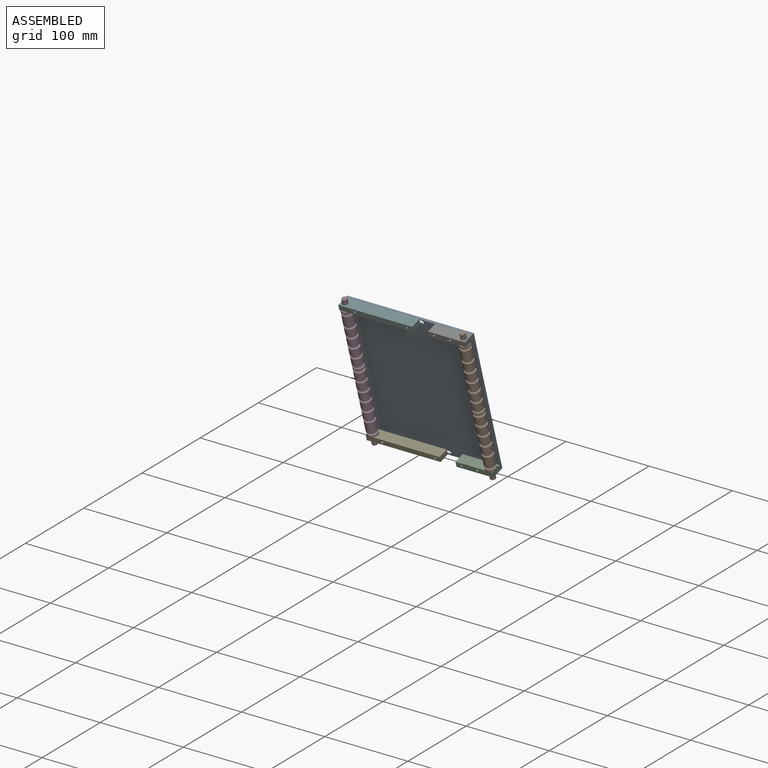
[diagram: assembled view]
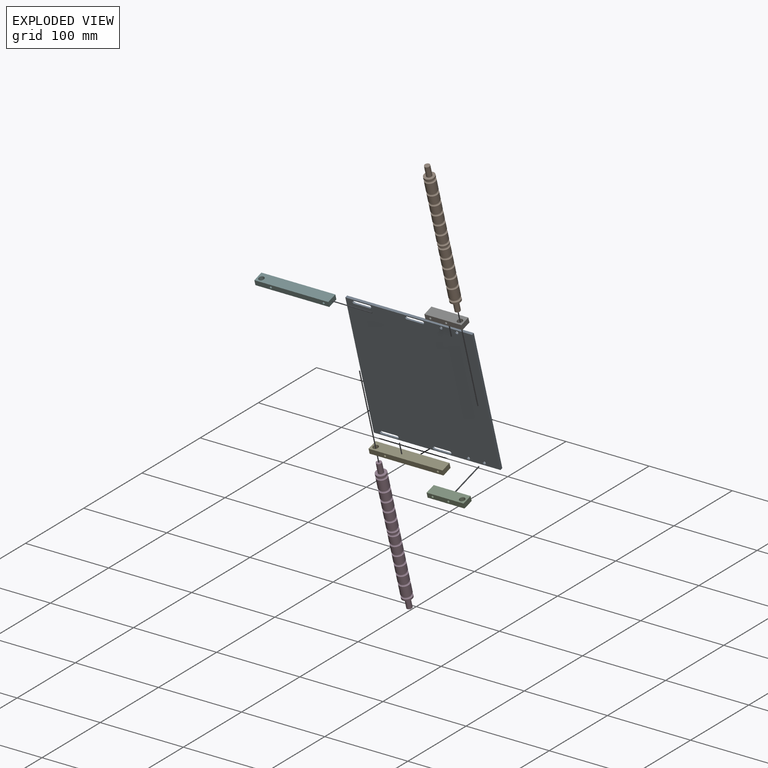
[diagram: exploded view]
GUIDED TOUR — MATED ASSEMBLY (Onshape document 7df171536bead1c0dff12cee, AutoMate assembly 7df171536bead1c0dff12cee_c732b0f8ffac11114930af41_9280328322717e96bcf535c0_default)

This assembly has 7 components, labeled P0..P6 below (a component is one placed occurrence of a part; the same part can appear more than once), held together by 15 mates. A mate is a constraint between two components; its type names the relative motion it leaves free:
  CYLINDRICAL — leaves both rotation about and translation along the listed axis free,
  PLANAR — leaves sliding in the plane through the listed point (normal = the listed direction) and rotation about that normal free,
  REVOLUTE — leaves rotation about the listed axis free (a hinge).
Axis/direction vectors are unit vectors and 'through' points are millimeter coordinates, both in the assembly's world frame.

MATES
  1. PLANAR "Planar 3": P0 <-> P5, direction (-1.000, 0.000, 0.000) through (-71.95, -60.27, 109.19) mm
  2. PLANAR "Planar 4": P0 <-> P6, direction (0.000, -0.283, 0.959) through (4.25, -60.27, 109.19) mm
  3. PLANAR "Planar 7": P2 <-> P0, direction (0.000, 0.959, 0.283) through (58.50, -13.74, -53.85) mm
  4. PLANAR "Planar 8": P2 <-> P0, direction (1.000, 0.000, 0.000) through (80.45, -19.83, -55.65) mm
  5. PLANAR "Planar 11": P4 <-> P0, direction (0.000, 0.283, -0.959) through (-26.31, -18.89, -58.69) mm
  6. REVOLUTE "Revolute 3": P3 <-> P4, axis (0.000, 0.283, -0.959) through (-66.87, -21.94, -52.97) mm
  7. PLANAR "Planar 5": P6 <-> P0, direction (1.000, 0.000, 0.000) through (80.45, -60.90, 105.69) mm
  8. PLANAR "Planar 9": P0 <-> P2, direction (0.000, 0.283, -0.959) through (4.25, -11.31, -56.45) mm
  9. CYLINDRICAL "Cylindrical 1": P1 <-> P2, axis (0.000, 0.283, -0.959) through (75.37, -22.12, -52.36) mm
  10. PLANAR "Planar 10": P4 <-> P0, direction (0.000, 0.959, 0.283) through (-27.63, -13.74, -53.85) mm
  11. PLANAR "Planar 12": P0 <-> P4, direction (-1.000, 0.000, 0.000) through (-71.95, -35.79, 26.37) mm
  12. REVOLUTE "Revolute 1": P6 <-> P1, axis (0.000, 0.283, -0.959) through (75.37, -67.30, 100.49) mm
  13. PLANAR "Planar 2": P0 <-> P5, direction (0.000, -0.283, 0.959) through (4.25, -60.27, 109.19) mm
  14. PLANAR "Planar 6": P6 <-> P0, direction (0.000, 0.959, 0.283) through (58.23, -61.80, 108.74) mm
  15. PLANAR "Planar 1": P0 <-> P5, direction (0.000, -0.959, -0.283) through (-52.90, -60.36, 103.88) mm

ASSEMBLY ORDER
  1. P4 — the base component [order verified]
  2. P3 [order verified]
  3. P2 [order verified]
  4. P1 [order verified]
  5. P0 [order verified]
  6. P6 [order verified]
  7. P5 [order verified]
Order-tag legend:
  [order verified] — this step's position reverses a verified removal order: the component was checked to insert without passing through the ones already placed.

Of the 7 components, 5 carry the full construction recipe — the FeatureScript program that regenerates the part's solid from scratch; the rest are supplied as boundary geometry only.
Each toured component is shown spotlighted twice — in the assembled view, then in the exploded view, where a leader line traces a displaced component back to its assembled socket (saturated green if recipe-attached, orange if geometry-only; every other component desaturated gray) — followed by its recipe or geometry summary and the mates that hold it.
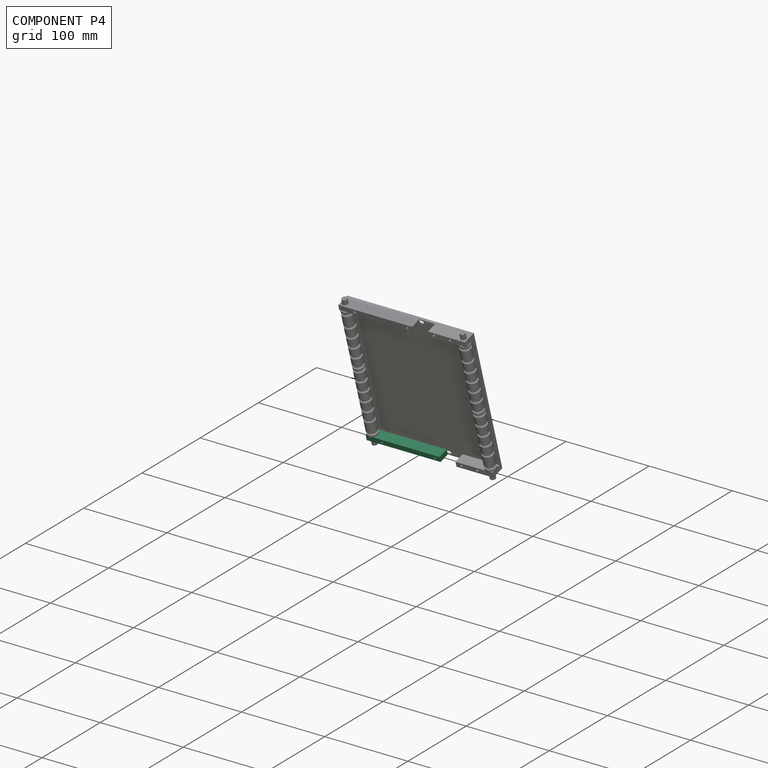
[diagram: component P4 — assembled]
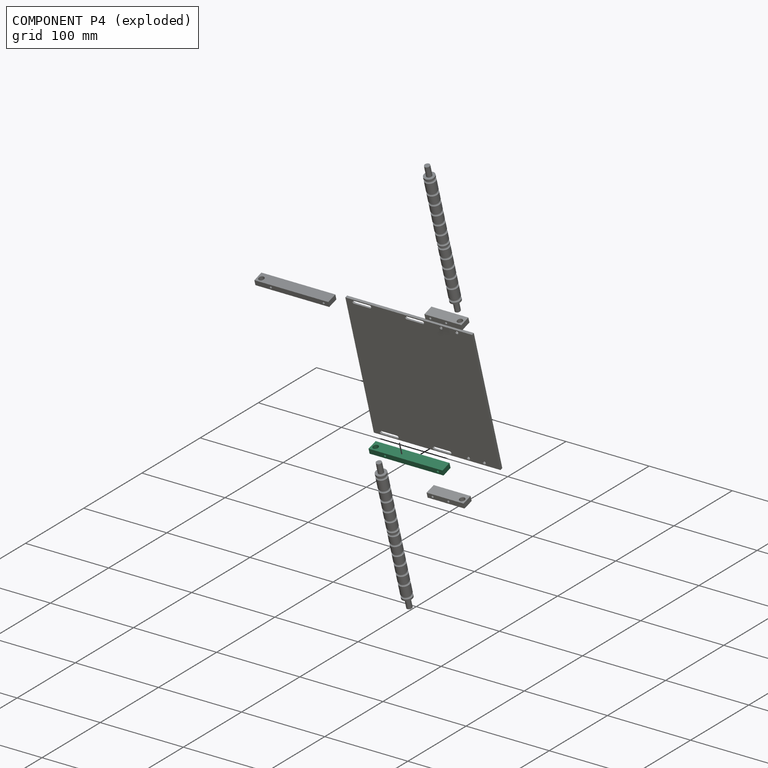
[diagram: component P4 — exploded]
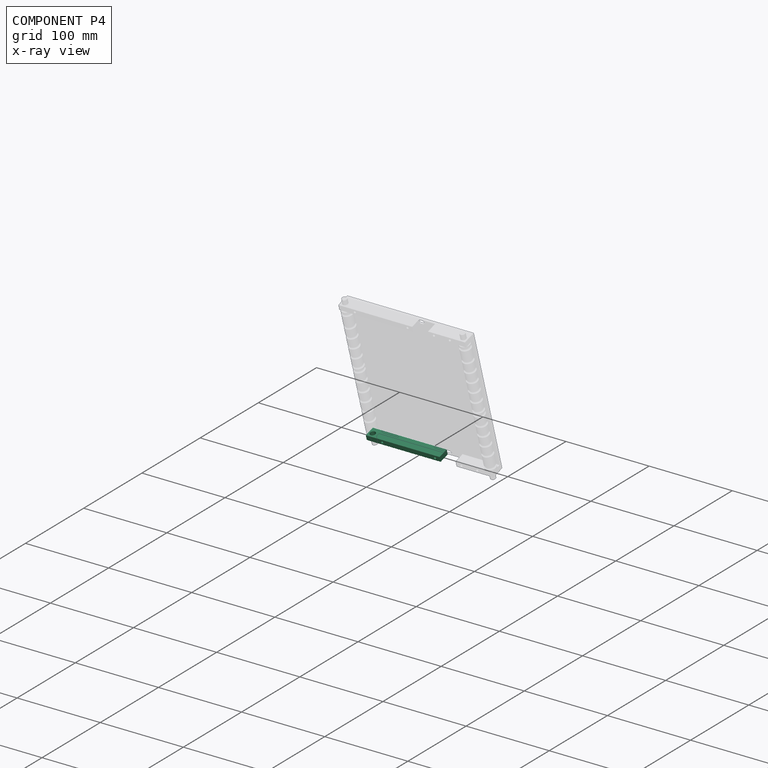
[diagram: component P4 — x-ray view]
COMPONENT P4 — recipe-attached (CADFS 00121784, mesh-verified: the recipe's output STEP matches this component's geometry to below the mesh-comparison resolution (tessellation chordal tolerance ~0.135 mm)).
Held by: PLANAR mate "Planar 11" to P0; REVOLUTE mate "Revolute 3" to P3; PLANAR mate "Planar 10" to P0; PLANAR mate "Planar 12" to P0.
Construction recipe (FeatureScript — the CAD program that rebuilds this solid; sketch coordinates are in the units given by the * unit suffixes, e.g. mm):

FeatureScript 1511;
import(path : "onshape/std/geometry.fs", version : "1511.0");
import(path : "onshape/std/common.fs", version : "1511.0");
const mm = millimeter;
const VERTEX = EntityType.VERTEX;
const EDGE = EntityType.EDGE;
const FACE = EntityType.FACE;
const BODY = EntityType.BODY;
function v(x, y){return vector(x, y);}
function OD(order){return orderDisambiguation(order);}
function OSD(set){return originalSetDisambiguation(set);}
function TD(topology){return topologyDisambiguation(topology);}
function TDD(query){return trueDependencyDisambiguation(query);}
function sQuery(a, b, c) {return sketchEntityQuery(a, b, c);}

annotation { "Feature Type Name" : "Feature", "Feature Type Description" : "" }
export const myFeature = defineFeature(function(context is Context, id is Id, definition is map)
    precondition{}
    {
        {
            var Q0;
            Q0=qCreatedBy(makeId("Front.planeOp"),FACE);
            var sketch = newSketch(context, id + "F0", { "sketchPlane" : qUnion([Q0])});
            skLineSegment(sketch, "E0.bottom", {"start": v(44.45, -6.35) * mm, "end": v(-44.45, -6.35) * mm});
            skLineSegment(sketch, "E0.top", {"start": v(44.45, 6.35) * mm, "end": v(-44.45, 6.35) * mm});
            skLineSegment(sketch, "E0.left", {"start": v(44.45, -6.35) * mm, "end": v(44.45, 6.35) * mm});
            skLineSegment(sketch, "E0.right", {"start": v(-44.45, -6.35) * mm, "end": v(-44.45, 6.35) * mm});
            skPoint(sketch, "E0.middle", {"position": v(0, 0) * mm});
            skCircle(sketch, "E1", {"center": v(-39.37, 1.27) * mm, "radius": 3.24 * mm});
            skSolve(sketch);
        }
        {
            var Q0;
            Q0 = qSketchRegion(id + "F0", true);
            extrude(context, id + "F1", {"entities" : qUnion([Q0]), "depth" : 6.35 * mm});
        }
        {
            var Q0;
            Q0=makeQuery(id+"F1.opExtrude","SWEPT_FACE",FACE,{"disambiguationData":[OSD([sQuery(id+"F0.wireOp",EDGE,"E0.bottom")])]});
            var sketch = newSketch(context, id + "F2", { "sketchPlane" : qUnion([Q0])});
            skPoint(sketch, "E2", {"position": v(-25.4, 3.18) * mm});
            skPoint(sketch, "E3", {"position": v(38.1, 3.18) * mm});
            skSolve(sketch);
        }
        {
            var Q0;
            Q0=sQuery(id+"F2.wireOp",VERTEX,"E2");
            var Q1;
            Q1=sQuery(id+"F2.wireOp",VERTEX,"E3");
            var Q2;
            Q2=makeQuery(id+"F1.opExtrude","SWEPT_BODY",BODY,{"disambiguationData":[OSD([sQuery(id+"F0.wireOp",EDGE,"E0.bottom"),sQuery(id+"F0.wireOp",EDGE,"E0.top"),sQuery(id+"F0.wireOp",EDGE,"E0.left"),sQuery(id+"F0.wireOp",EDGE,"E0.right"),sQuery(id+"F0.wireOp",EDGE,"E1")])]});
            hole(context, id + "F3", {"style" : HoleStyle.SIMPLE, "endStyle" : HoleEndStyle.THROUGH, "standardTappedOrClearance" : lookupTablePath({ "standard" : "ANSI", "engagement" : "75%", "pitch" : "32 tpi", "size" : "#6", "type" : "Tapped" }), "standardBlindInLast" : lookupTablePath({ "standard" : "ANSI", "engagement" : "75%", "pitch" : "32 tpi", "size" : "#6", "type" : "Tapped" }), "holeDiameter" : 2.7 * mm, "locations" : qUnion([Q0, Q1]), "scope" : qUnion([Q2]), "isTappedThrough" : true, "majorDiameter" : 3.5 * mm, "showTappedDepth" : true});
        }
    });
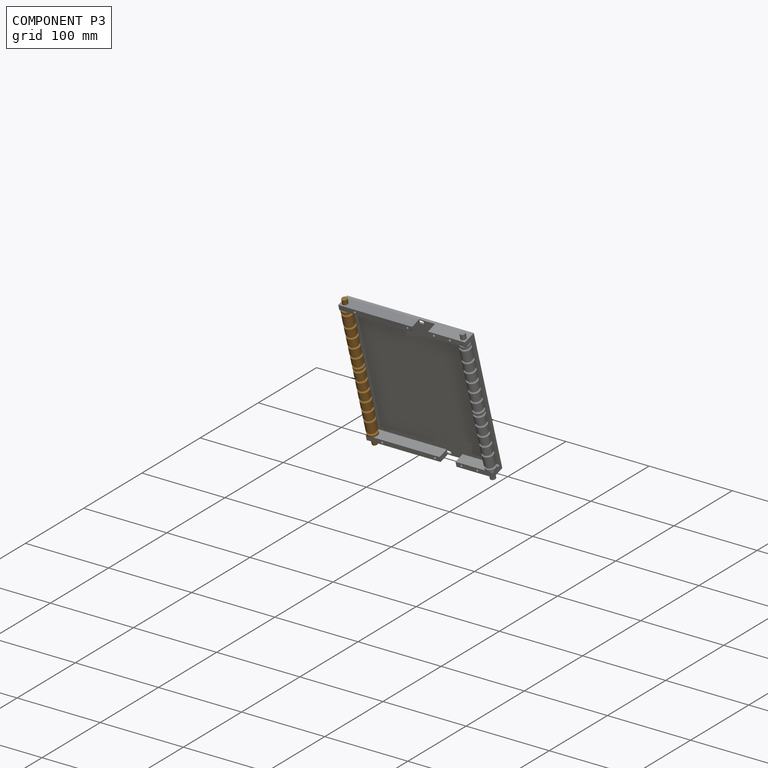
[diagram: component P3 — assembled]
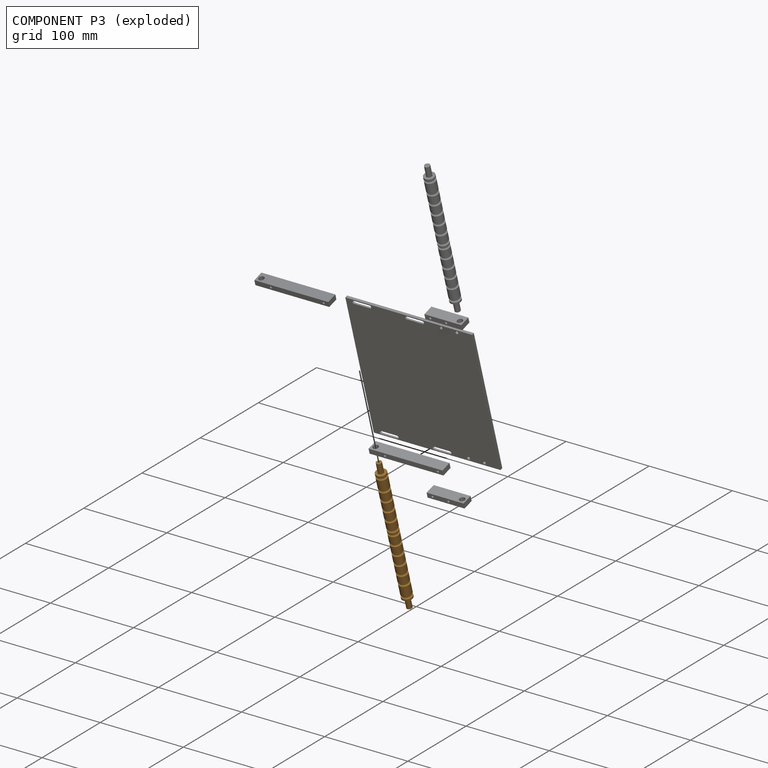
[diagram: component P3 — exploded]
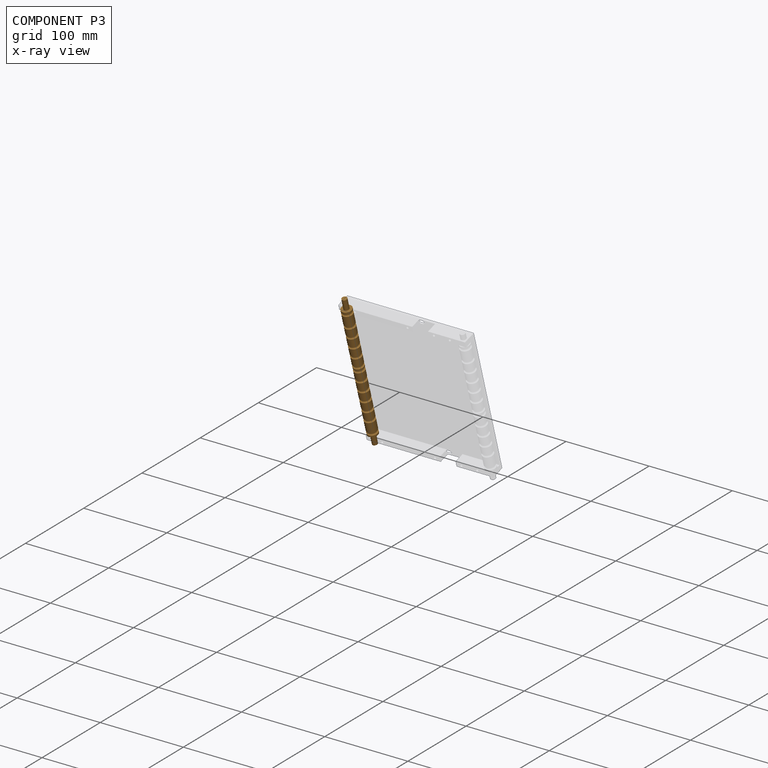
[diagram: component P3 — x-ray view]
COMPONENT P3 — geometry summary (no construction recipe available for this part):
  bounding box: 185.4 x 16.2 x 16.2 mm
  B-rep topology: 1 solid, 33 faces, 122 edges
  volume: 19179 mm^3 (39% of its bounding box)
  symmetry: revolution-symmetric about the x axis through its bounding-box center; mirror-symmetric across its y mid-plane, z mid-plane
Held by: REVOLUTE mate "Revolute 3" to P4.
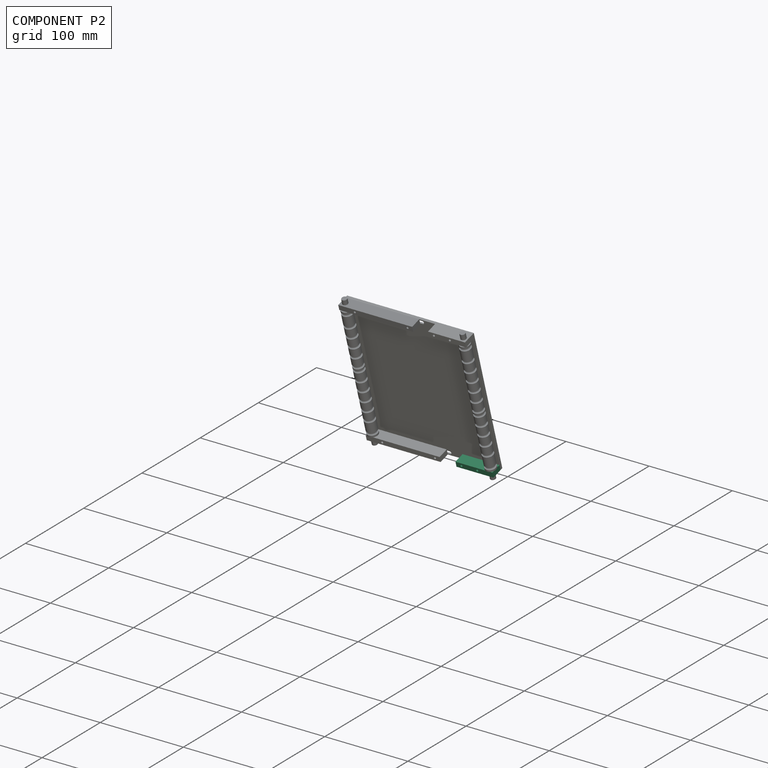
[diagram: component P2 — assembled]
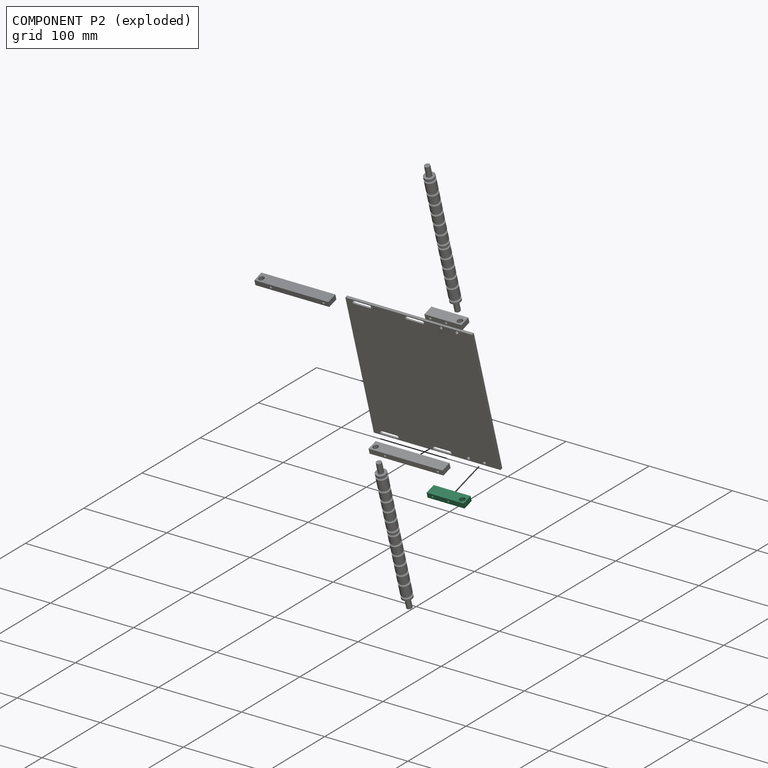
[diagram: component P2 — exploded]
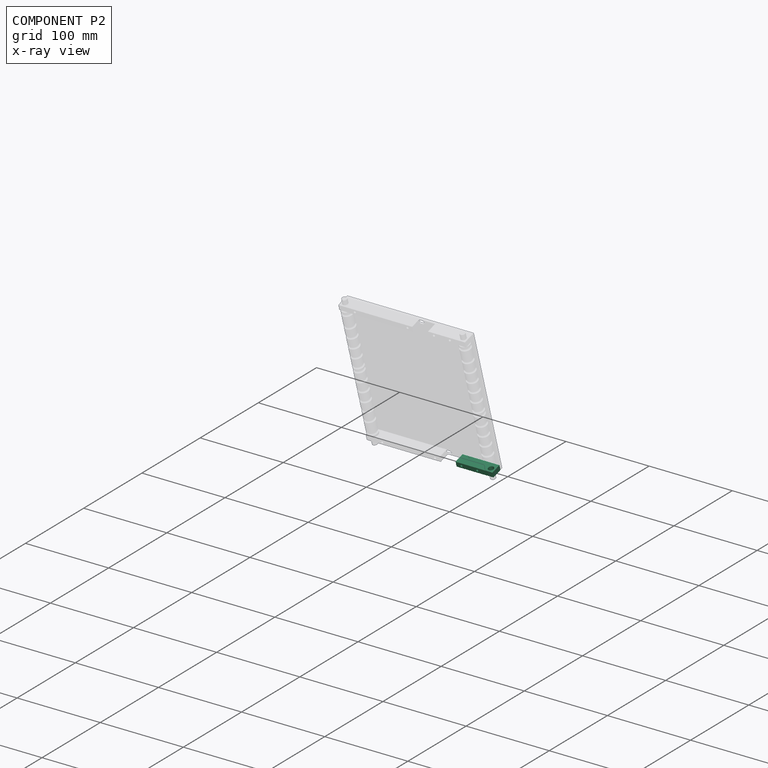
[diagram: component P2 — x-ray view]
COMPONENT P2 — recipe-attached (CADFS 00121783, mesh-verified: the recipe's output STEP matches this component's geometry to below the mesh-comparison resolution (tessellation chordal tolerance ~0.07 mm)).
Held by: PLANAR mate "Planar 7" to P0; PLANAR mate "Planar 8" to P0; PLANAR mate "Planar 9" to P0; CYLINDRICAL mate "Cylindrical 1" to P1.
Construction recipe (FeatureScript — the CAD program that rebuilds this solid; sketch coordinates are in the units given by the * unit suffixes, e.g. mm):

FeatureScript 1511;
import(path : "onshape/std/geometry.fs", version : "1511.0");
import(path : "onshape/std/common.fs", version : "1511.0");
const mm = millimeter;
const VERTEX = EntityType.VERTEX;
const EDGE = EntityType.EDGE;
const FACE = EntityType.FACE;
const BODY = EntityType.BODY;
function v(x, y){return vector(x, y);}
function OD(order){return orderDisambiguation(order);}
function OSD(set){return originalSetDisambiguation(set);}
function TD(topology){return topologyDisambiguation(topology);}
function TDD(query){return trueDependencyDisambiguation(query);}
function sQuery(a, b, c) {return sketchEntityQuery(a, b, c);}

annotation { "Feature Type Name" : "Feature", "Feature Type Description" : "" }
export const myFeature = defineFeature(function(context is Context, id is Id, definition is map)
    precondition{}
    {
        {
            var Q0;
            Q0=qCreatedBy(makeId("Front.planeOp"),FACE);
            var sketch = newSketch(context, id + "F0", { "sketchPlane" : qUnion([Q0])});
            skLineSegment(sketch, "E0.bottom", {"start": v(22.23, -6.35) * mm, "end": v(-22.23, -6.35) * mm});
            skLineSegment(sketch, "E0.top", {"start": v(22.22, 6.35) * mm, "end": v(-22.23, 6.35) * mm});
            skLineSegment(sketch, "E0.left", {"start": v(22.23, -6.35) * mm, "end": v(22.22, 6.35) * mm});
            skLineSegment(sketch, "E0.right", {"start": v(-22.23, -6.35) * mm, "end": v(-22.23, 6.35) * mm});
            skPoint(sketch, "E0.middle", {"position": v(0, 0) * mm});
            skCircle(sketch, "E1", {"center": v(17.14, 1.27) * mm, "radius": 3.24 * mm});
            skSolve(sketch);
        }
        {
            var Q0;
            Q0 = qSketchRegion(id + "F0", true);
            extrude(context, id + "F1", {"entities" : qUnion([Q0]), "depth" : 6.35 * mm});
        }
        {
            var Q0;
            Q0=makeQuery(id+"F1.opExtrude","SWEPT_FACE",FACE,{"disambiguationData":[OSD([sQuery(id+"F0.wireOp",EDGE,"E0.bottom")])]});
            var sketch = newSketch(context, id + "F2", { "sketchPlane" : qUnion([Q0])});
            skPoint(sketch, "E2", {"position": v(3.18, 3.18) * mm});
            skPoint(sketch, "E3", {"position": v(-15.88, 3.18) * mm});
            skSolve(sketch);
        }
        {
            var Q0;
            Q0=sQuery(id+"F2.wireOp",VERTEX,"E3");
            var Q1;
            Q1=sQuery(id+"F2.wireOp",VERTEX,"E2");
            var Q2;
            Q2=makeQuery(id+"F1.opExtrude","SWEPT_BODY",BODY,{"disambiguationData":[OSD([sQuery(id+"F0.wireOp",EDGE,"E0.bottom"),sQuery(id+"F0.wireOp",EDGE,"E0.top"),sQuery(id+"F0.wireOp",EDGE,"E0.left"),sQuery(id+"F0.wireOp",EDGE,"E0.right"),sQuery(id+"F0.wireOp",EDGE,"E1")])]});
            hole(context, id + "F3", {"style" : HoleStyle.SIMPLE, "endStyle" : HoleEndStyle.THROUGH, "standardTappedOrClearance" : lookupTablePath({ "standard" : "ANSI", "engagement" : "75%", "pitch" : "32 tpi", "size" : "#6", "type" : "Tapped" }), "standardBlindInLast" : lookupTablePath({ "standard" : "ANSI", "engagement" : "75%", "pitch" : "32 tpi", "size" : "#6", "type" : "Tapped" }), "holeDiameter" : 2.7 * mm, "locations" : qUnion([Q0, Q1]), "scope" : qUnion([Q2]), "isTappedThrough" : true, "majorDiameter" : 3.5 * mm, "showTappedDepth" : true});
        }
    });
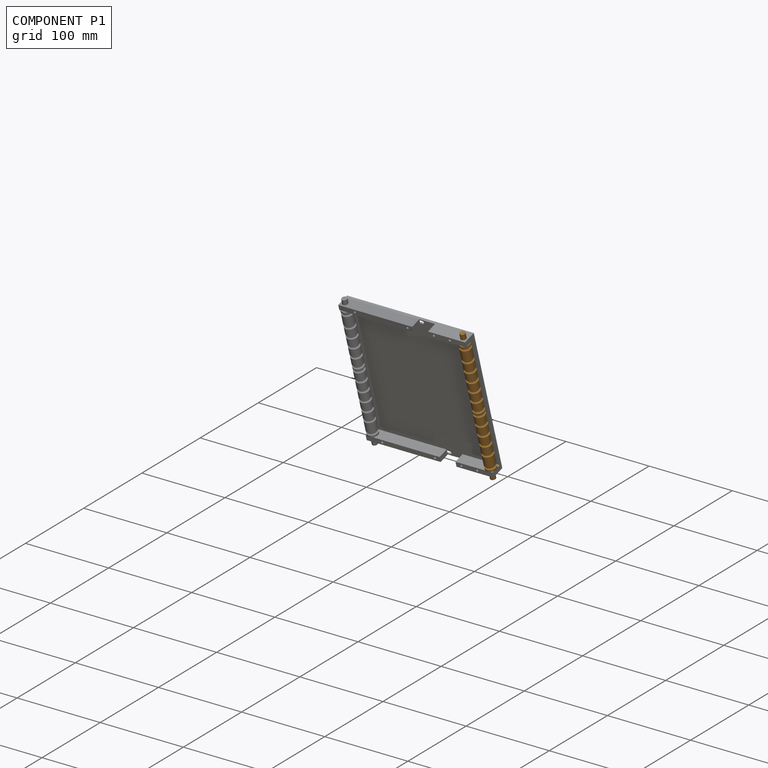
[diagram: component P1 — assembled]
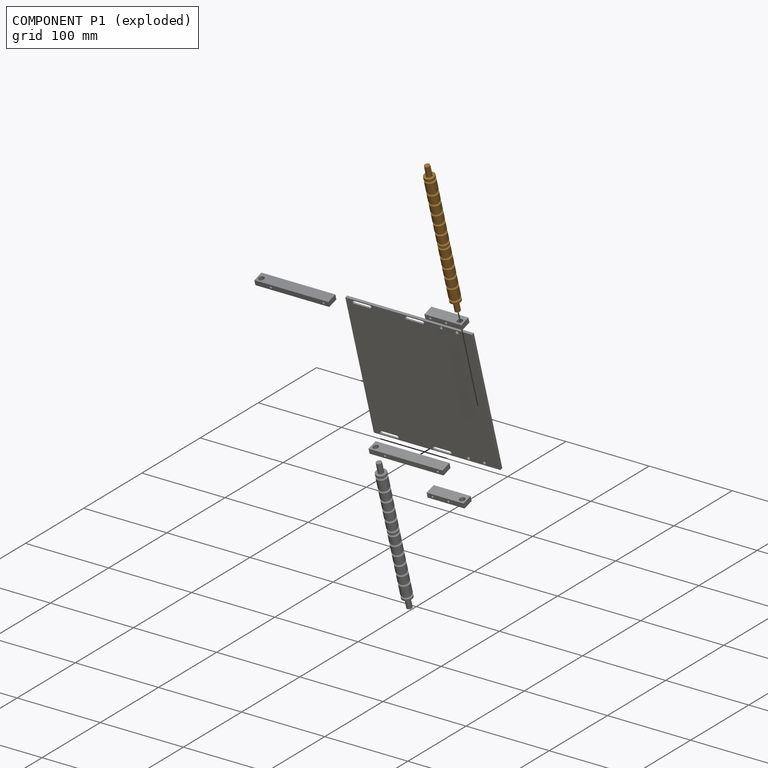
[diagram: component P1 — exploded]
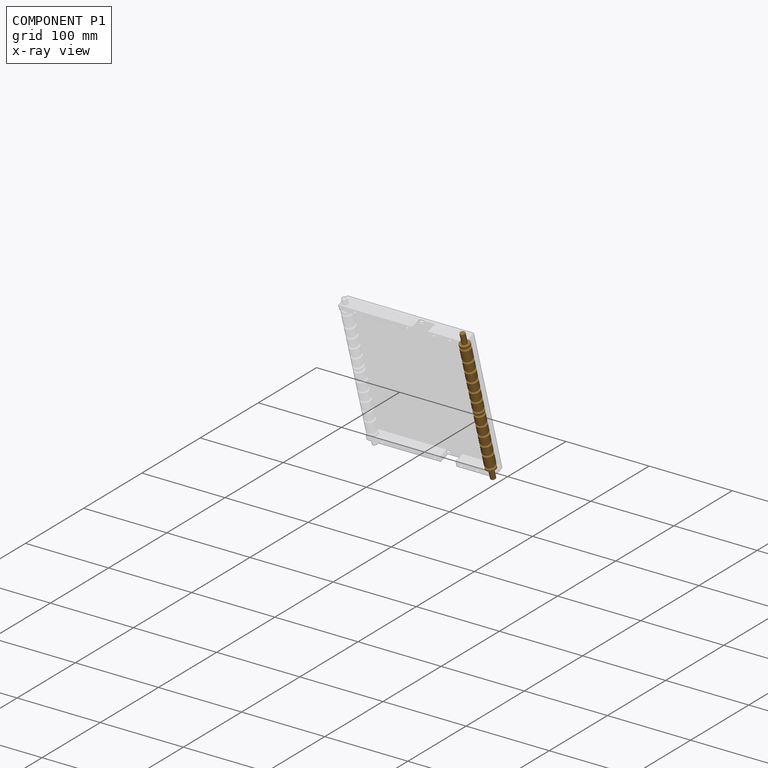
[diagram: component P1 — x-ray view]
COMPONENT P1 — geometry summary (no construction recipe available for this part):
  bounding box: 185.4 x 16.2 x 16.2 mm
  B-rep topology: 1 solid, 33 faces, 122 edges
  volume: 19179 mm^3 (39% of its bounding box)
  symmetry: revolution-symmetric about the x axis through its bounding-box center; mirror-symmetric across its y mid-plane, z mid-plane
Held by: CYLINDRICAL mate "Cylindrical 1" to P2; REVOLUTE mate "Revolute 1" to P6.
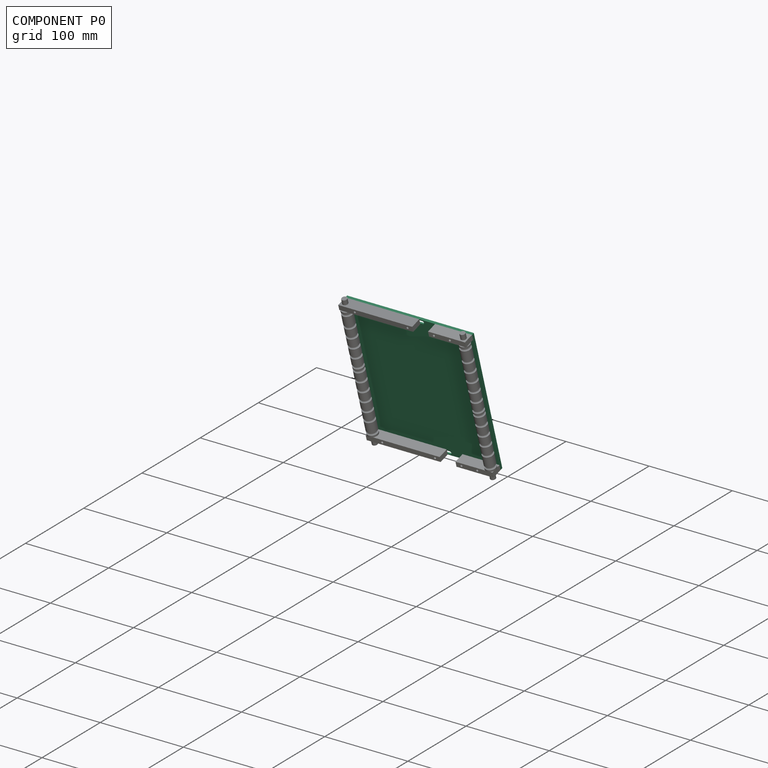
[diagram: component P0 — assembled]
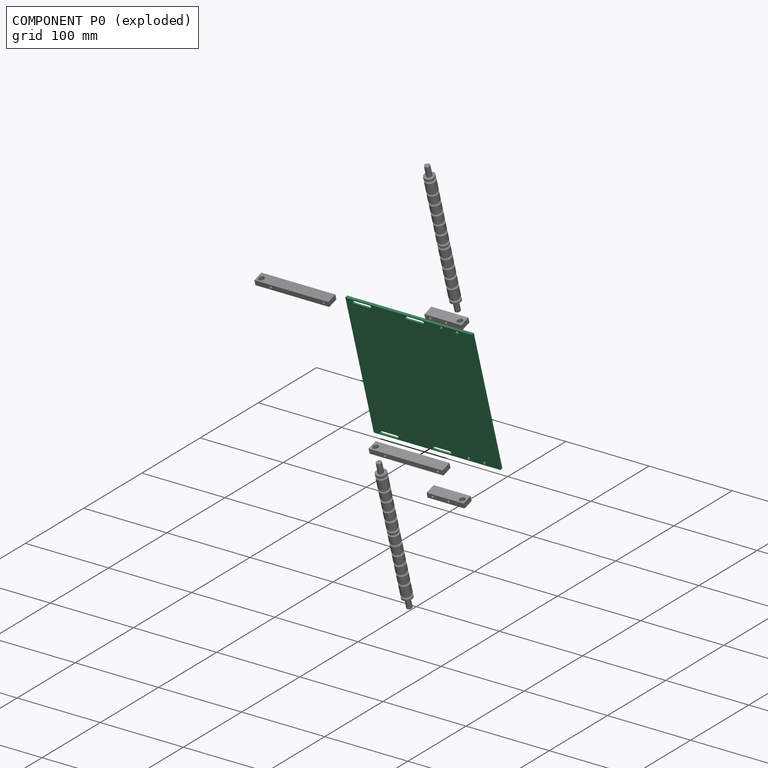
[diagram: component P0 — exploded]
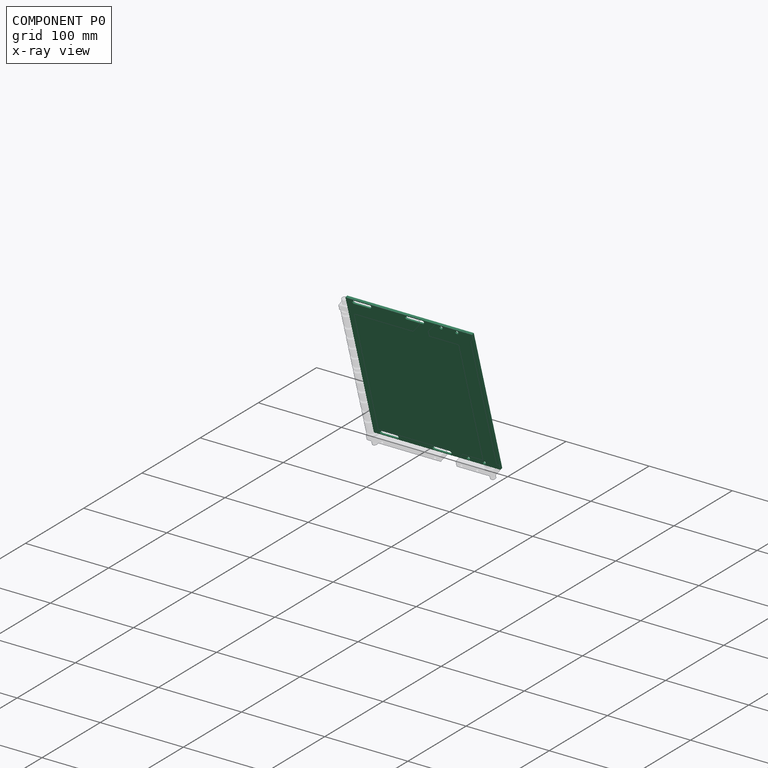
[diagram: component P0 — x-ray view]
COMPONENT P0 — recipe-attached (CADFS 00121782, mesh-verified: the recipe's output STEP matches this component's geometry to below the mesh-comparison resolution (tessellation chordal tolerance ~0.346 mm)).
Held by: PLANAR mate "Planar 3" to P5; PLANAR mate "Planar 4" to P6; PLANAR mate "Planar 7" to P2; PLANAR mate "Planar 8" to P2; PLANAR mate "Planar 11" to P4; PLANAR mate "Planar 5" to P6; PLANAR mate "Planar 9" to P2; PLANAR mate "Planar 10" to P4; PLANAR mate "Planar 12" to P4; PLANAR mate "Planar 2" to P5; PLANAR mate "Planar 6" to P6; PLANAR mate "Planar 1" to P5.
Construction recipe (FeatureScript — the CAD program that rebuilds this solid; sketch coordinates are in the units given by the * unit suffixes, e.g. mm):

FeatureScript 1511;
import(path : "onshape/std/geometry.fs", version : "1511.0");
import(path : "onshape/std/common.fs", version : "1511.0");
const mm = millimeter;
const VERTEX = EntityType.VERTEX;
const EDGE = EntityType.EDGE;
const FACE = EntityType.FACE;
const BODY = EntityType.BODY;
function v(x, y){return vector(x, y);}
function OD(order){return orderDisambiguation(order);}
function OSD(set){return originalSetDisambiguation(set);}
function TD(topology){return topologyDisambiguation(topology);}
function TDD(query){return trueDependencyDisambiguation(query);}
function sQuery(a, b, c) {return sketchEntityQuery(a, b, c);}

annotation { "Feature Type Name" : "Feature", "Feature Type Description" : "" }
export const myFeature = defineFeature(function(context is Context, id is Id, definition is map)
    precondition{}
    {
        {
            var Q0;
            Q0=qCreatedBy(makeId("Front.planeOp"),FACE);
            var sketch = newSketch(context, id + "F0", { "sketchPlane" : qUnion([Q0])});
            skLineSegment(sketch, "E0.bottom", {"start": v(76.2, -86.36) * mm, "end": v(-76.2, -86.36) * mm});
            skLineSegment(sketch, "E0.top", {"start": v(76.2, 86.36) * mm, "end": v(-76.2, 86.36) * mm});
            skLineSegment(sketch, "E0.left", {"start": v(76.2, -86.36) * mm, "end": v(76.2, 86.36) * mm});
            skLineSegment(sketch, "E0.right", {"start": v(-76.2, -86.36) * mm, "end": v(-76.2, 86.36) * mm});
            skPoint(sketch, "E0.middle", {"position": v(0, 0) * mm});
            skArc(sketch, "E1", {"start": v(-66.67, -81.3) * mm, "mid": v(-68.57, -83.19) * mm, "end": v(-66.67, -85.08) * mm});
            skArc(sketch, "E2", {"start": v(-47.62, -85.08) * mm, "mid": v(-45.73, -83.19) * mm, "end": v(-47.62, -81.3) * mm});
            skLineSegment(sketch, "E3", {"start": v(-66.67, -81.3) * mm, "end": v(-47.62, -81.3) * mm});
            skLineSegment(sketch, "E4", {"start": v(-47.62, -85.08) * mm, "end": v(-66.67, -85.08) * mm});
            skArc(sketch, "E5.MirrorCS", {"start": v(-47.62, 85.08) * mm, "mid": v(-45.73, 83.19) * mm, "end": v(-47.62, 81.3) * mm});
            skLineSegment(sketch, "E6.MirrorCS", {"start": v(-66.67, 81.3) * mm, "end": v(-47.62, 81.3) * mm});
            skLineSegment(sketch, "E7.MirrorCS", {"start": v(-47.62, 85.08) * mm, "end": v(-66.67, 85.08) * mm});
            skArc(sketch, "E8.MirrorCS", {"start": v(-66.67, 81.3) * mm, "mid": v(-68.57, 83.19) * mm, "end": v(-66.67, 85.08) * mm});
            skLineSegment(sketch, "E9", {"start": v(-25.4, 86.36) * mm, "end": v(-25.4, -120.08) * mm, "construction": true});
            skArc(sketch, "E10.MirrorCS", {"start": v(-3.17, -85.08) * mm, "mid": v(-5.07, -83.19) * mm, "end": v(-3.17, -81.3) * mm});
            skLineSegment(sketch, "E11.MirrorCS", {"start": v(-3.17, -85.08) * mm, "end": v(15.88, -85.08) * mm});
            skArc(sketch, "E12.MirrorCS", {"start": v(15.88, -81.3) * mm, "mid": v(17.77, -83.19) * mm, "end": v(15.88, -85.08) * mm});
            skLineSegment(sketch, "E13.MirrorCS", {"start": v(-3.18, 85.08) * mm, "end": v(15.87, 85.08) * mm});
            skLineSegment(sketch, "E14.MirrorCS", {"start": v(15.88, -81.3) * mm, "end": v(-3.17, -81.3) * mm});
            skArc(sketch, "E15.MirrorCS", {"start": v(15.87, 81.3) * mm, "mid": v(17.77, 83.19) * mm, "end": v(15.87, 85.08) * mm});
            skLineSegment(sketch, "E16.MirrorCS", {"start": v(-25.4, 59.18) * mm, "end": v(-25.4, 86.36) * mm, "construction": true});
            skLineSegment(sketch, "E17.MirrorCS", {"start": v(15.87, 81.3) * mm, "end": v(-3.18, 81.3) * mm});
            skPoint(sketch, "E18.MirrorCS.end.orphan", {"position": v(-66.67, 77.5) * mm});
            skPoint(sketch, "E18.MirrorCS.start.orphan", {"position": v(-66.67, 81.3) * mm});
            skPoint(sketch, "E19.trimOffspring.end.orphan", {"position": v(-25.4, 282.67) * mm});
            skPoint(sketch, "E19.trimOffspring.start.orphan", {"position": v(-25.4, 103.4) * mm});
            skArc(sketch, "E20.MirrorCS", {"start": v(-3.18, 85.08) * mm, "mid": v(-5.07, 83.19) * mm, "end": v(-3.18, 81.3) * mm});
            skPoint(sketch, "E21.MirrorCS.end.orphan", {"position": v(15.87, 85.08) * mm});
            skPoint(sketch, "E21.MirrorCS.start.orphan", {"position": v(15.87, 81.3) * mm});
            skCircle(sketch, "E22", {"center": v(38.1, -83.19) * mm, "radius": 1.83 * mm});
            skCircle(sketch, "E23", {"center": v(57.15, -83.19) * mm, "radius": 1.83 * mm});
            skCircle(sketch, "E24", {"center": v(38.1, 83.19) * mm, "radius": 1.83 * mm});
            skCircle(sketch, "E25", {"center": v(57.15, 83.19) * mm, "radius": 1.83 * mm});
            skPoint(sketch, "E26.MirrorCS.end.orphan", {"position": v(47.62, -81.3) * mm});
            skPoint(sketch, "E26.MirrorCS.start.orphan", {"position": v(47.62, -85.08) * mm});
            skPoint(sketch, "E27.MirrorCS.end.orphan", {"position": v(66.67, -85.08) * mm});
            skPoint(sketch, "E27.MirrorCS.start.orphan", {"position": v(66.67, -81.3) * mm});
            skPoint(sketch, "E28.MirrorCS.end.orphan", {"position": v(66.67, 85.08) * mm});
            skPoint(sketch, "E28.MirrorCS.start.orphan", {"position": v(66.67, 81.3) * mm});
            skPoint(sketch, "E29.MirrorCS.end.orphan", {"position": v(47.62, 81.3) * mm});
            skPoint(sketch, "E29.MirrorCS.start.orphan", {"position": v(47.62, 85.08) * mm});
            skPoint(sketch, "E30.end.orphan", {"position": v(-57.15, -81.3) * mm});
            skPoint(sketch, "E30.start.orphan", {"position": v(-57.15, 81.3) * mm});
            skSolve(sketch);
        }
        {
            var Q0;
            Q0 = qSketchRegion(id + "F0", true);
            extrude(context, id + "F1", {"entities" : qUnion([Q0]), "depth" : 3.17 * mm});
        }
        {
            var Q0;
            Q0=makeQuery(id+"F1.opExtrude","CAP_EDGE",EDGE,{"disambiguationData":[OSD([sQuery(id+"F0.wireOp",EDGE,"E25")])],"isStart":true});
            var Q1;
            Q1=makeQuery(id+"F1.opExtrude","CAP_EDGE",EDGE,{"disambiguationData":[OSD([sQuery(id+"F0.wireOp",EDGE,"E24")])],"isStart":true});
            var Q2;
            Q2=makeQuery(id+"F1.opExtrude","CAP_EDGE",EDGE,{"disambiguationData":[OSD([sQuery(id+"F0.wireOp",EDGE,"E15.MirrorCS")])],"isStart":true});
            var Q3;
            Q3=makeQuery(id+"F1.opExtrude","CAP_EDGE",EDGE,{"disambiguationData":[OSD([sQuery(id+"F0.wireOp",EDGE,"E13.MirrorCS")])],"isStart":true});
            var Q4;
            Q4=makeQuery(id+"F1.opExtrude","CAP_EDGE",EDGE,{"disambiguationData":[OSD([sQuery(id+"F0.wireOp",EDGE,"E20.MirrorCS")])],"isStart":true});
            var Q5;
            Q5=makeQuery(id+"F1.opExtrude","CAP_EDGE",EDGE,{"disambiguationData":[OSD([sQuery(id+"F0.wireOp",EDGE,"E17.MirrorCS")])],"isStart":true});
            var Q6;
            Q6=makeQuery(id+"F1.opExtrude","CAP_EDGE",EDGE,{"disambiguationData":[OSD([sQuery(id+"F0.wireOp",EDGE,"E5.MirrorCS")])],"isStart":true});
            var Q7;
            Q7=makeQuery(id+"F1.opExtrude","CAP_EDGE",EDGE,{"disambiguationData":[OSD([sQuery(id+"F0.wireOp",EDGE,"E7.MirrorCS")])],"isStart":true});
            var Q8;
            Q8=makeQuery(id+"F1.opExtrude","CAP_EDGE",EDGE,{"disambiguationData":[OSD([sQuery(id+"F0.wireOp",EDGE,"E6.MirrorCS")])],"isStart":true});
            var Q9;
            Q9=makeQuery(id+"F1.opExtrude","CAP_EDGE",EDGE,{"disambiguationData":[OSD([sQuery(id+"F0.wireOp",EDGE,"E8.MirrorCS")])],"isStart":true});
            var Q10;
            Q10=makeQuery(id+"F1.opExtrude","CAP_EDGE",EDGE,{"disambiguationData":[OSD([sQuery(id+"F0.wireOp",EDGE,"E3")])],"isStart":true});
            var Q11;
            Q11=makeQuery(id+"F1.opExtrude","CAP_EDGE",EDGE,{"disambiguationData":[OSD([sQuery(id+"F0.wireOp",EDGE,"E2")])],"isStart":true});
            var Q12;
            Q12=makeQuery(id+"F1.opExtrude","CAP_EDGE",EDGE,{"disambiguationData":[OSD([sQuery(id+"F0.wireOp",EDGE,"E4")])],"isStart":true});
            var Q13;
            Q13=makeQuery(id+"F1.opExtrude","CAP_EDGE",EDGE,{"disambiguationData":[OSD([sQuery(id+"F0.wireOp",EDGE,"E1")])],"isStart":true});
            var Q14;
            Q14=makeQuery(id+"F1.opExtrude","CAP_EDGE",EDGE,{"disambiguationData":[OSD([sQuery(id+"F0.wireOp",EDGE,"E10.MirrorCS")])],"isStart":true});
            var Q15;
            Q15=makeQuery(id+"F1.opExtrude","CAP_EDGE",EDGE,{"disambiguationData":[OSD([sQuery(id+"F0.wireOp",EDGE,"E14.MirrorCS")])],"isStart":true});
            var Q16;
            Q16=makeQuery(id+"F1.opExtrude","CAP_EDGE",EDGE,{"disambiguationData":[OSD([sQuery(id+"F0.wireOp",EDGE,"E12.MirrorCS")])],"isStart":true});
            var Q17;
            Q17=makeQuery(id+"F1.opExtrude","CAP_EDGE",EDGE,{"disambiguationData":[OSD([sQuery(id+"F0.wireOp",EDGE,"E11.MirrorCS")])],"isStart":true});
            var Q18;
            Q18=makeQuery(id+"F1.opExtrude","CAP_EDGE",EDGE,{"disambiguationData":[OSD([sQuery(id+"F0.wireOp",EDGE,"E22")])],"isStart":true});
            var Q19;
            Q19=makeQuery(id+"F1.opExtrude","CAP_EDGE",EDGE,{"disambiguationData":[OSD([sQuery(id+"F0.wireOp",EDGE,"E23")])],"isStart":true});
            chamfer(context, id + "F2", {"entities" : qUnion([Q0, Q1, Q2, Q3, Q4, Q5, Q6, Q7, Q8, Q9, Q10, Q11, Q12, Q13, Q14, Q15, Q16, Q17, Q18, Q19]), "width" : 1.27 * mm, "tangentPropagation" : true});
        }
    });
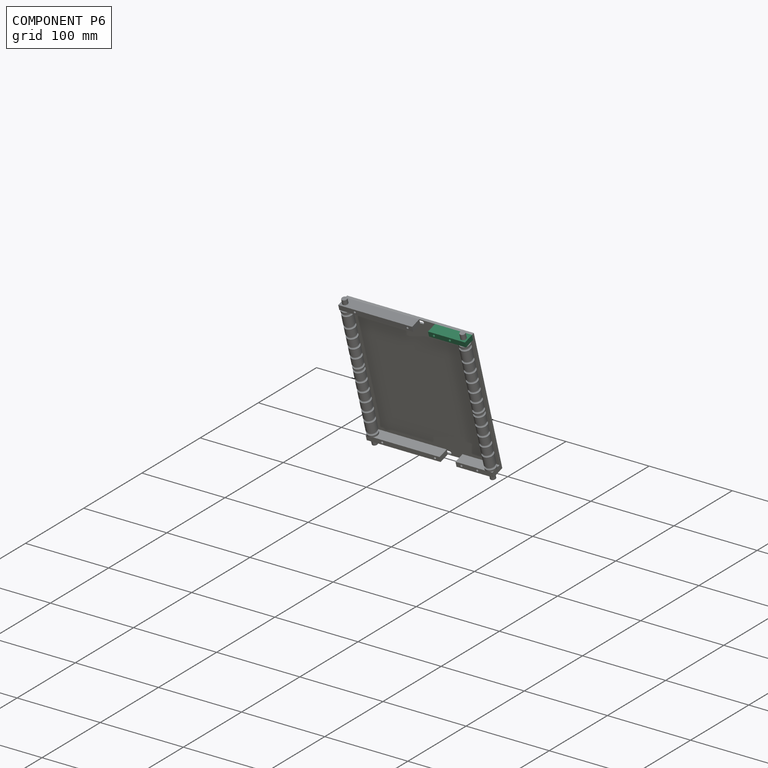
[diagram: component P6 — assembled]
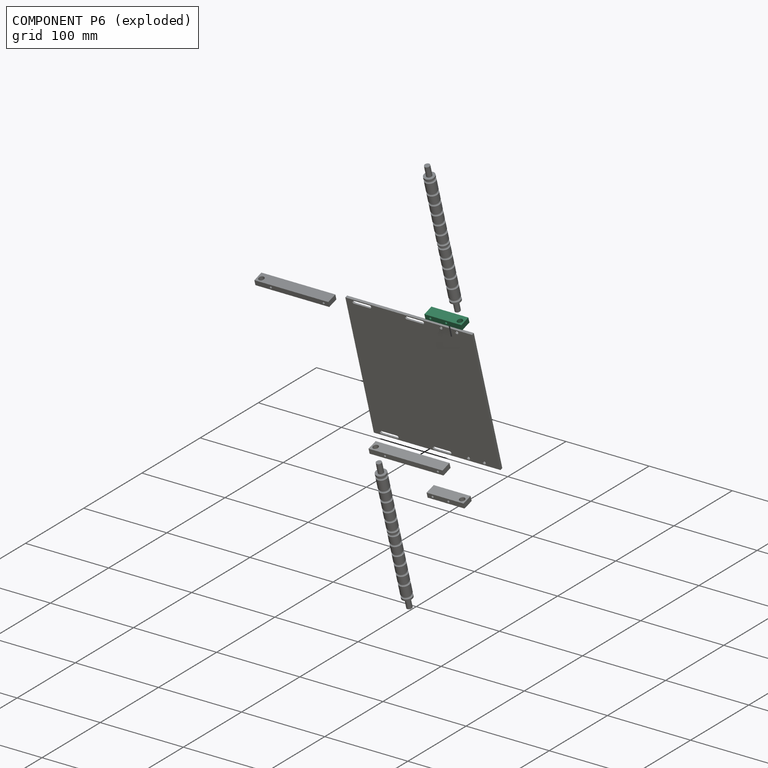
[diagram: component P6 — exploded]
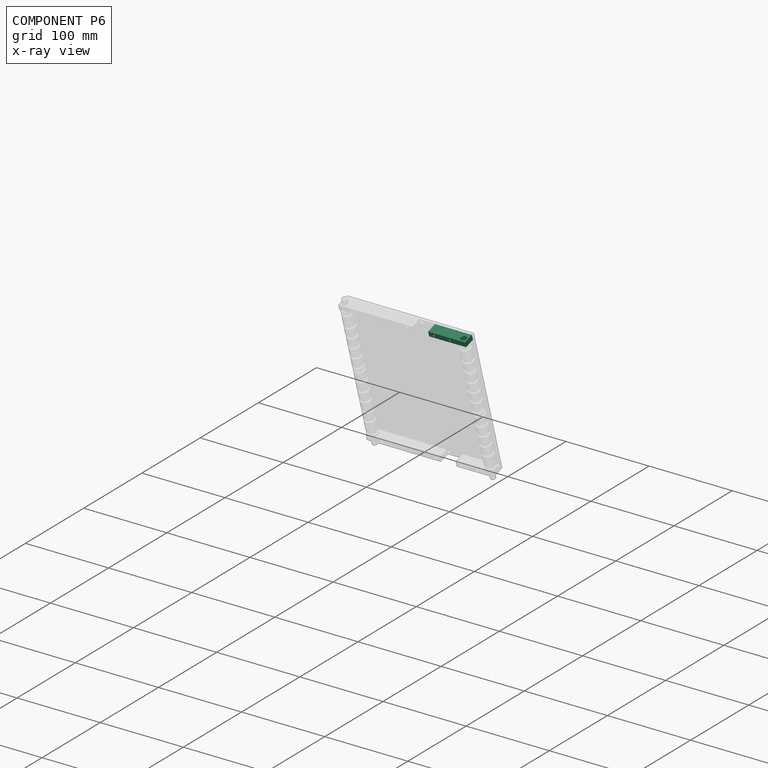
[diagram: component P6 — x-ray view]
COMPONENT P6 — same part as P2 (CADFS 00121783); its construction recipe is shown at P2.
Held by: PLANAR mate "Planar 4" to P0; PLANAR mate "Planar 5" to P0; REVOLUTE mate "Revolute 1" to P1; PLANAR mate "Planar 6" to P0.
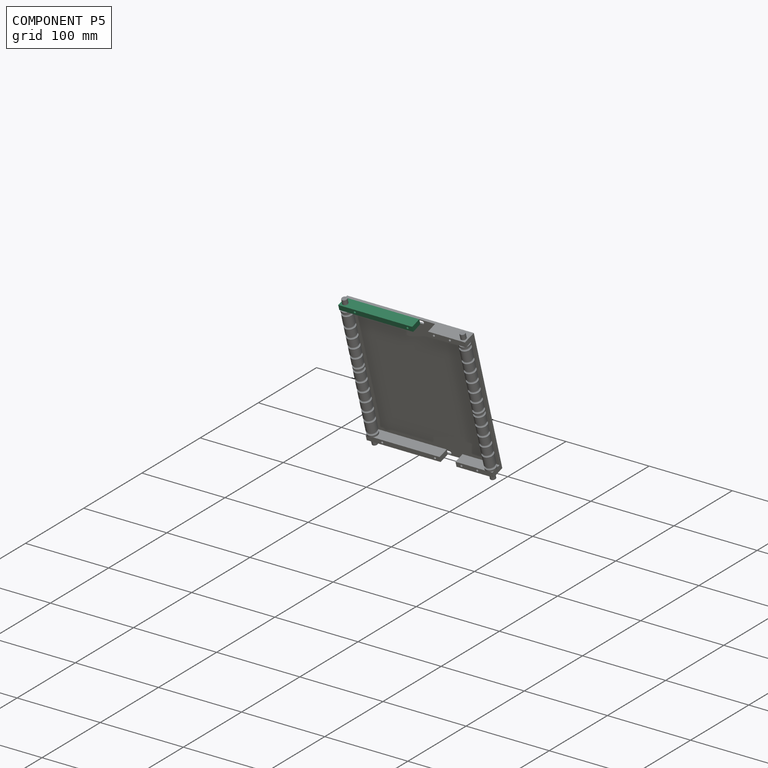
[diagram: component P5 — assembled]
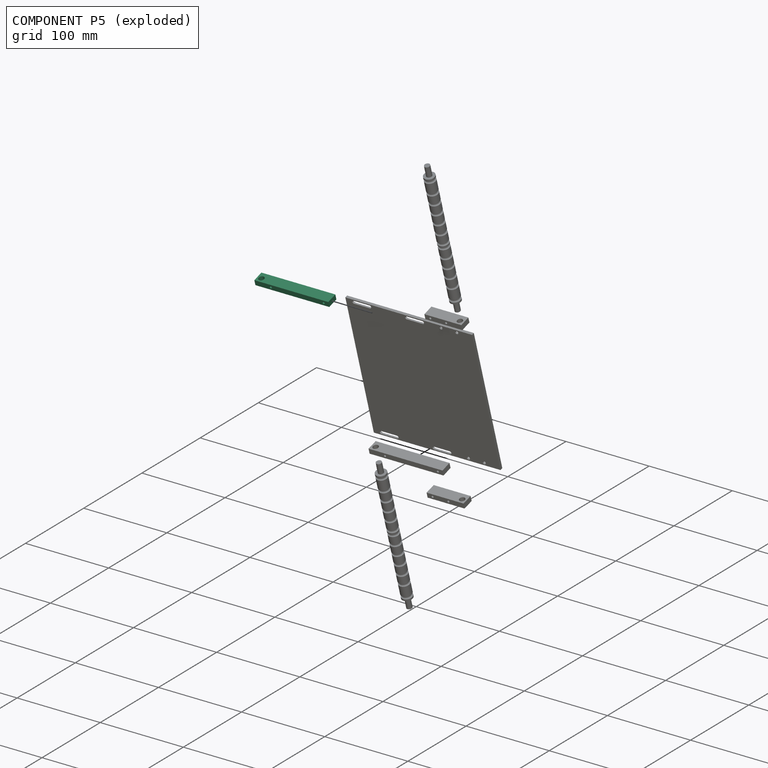
[diagram: component P5 — exploded]
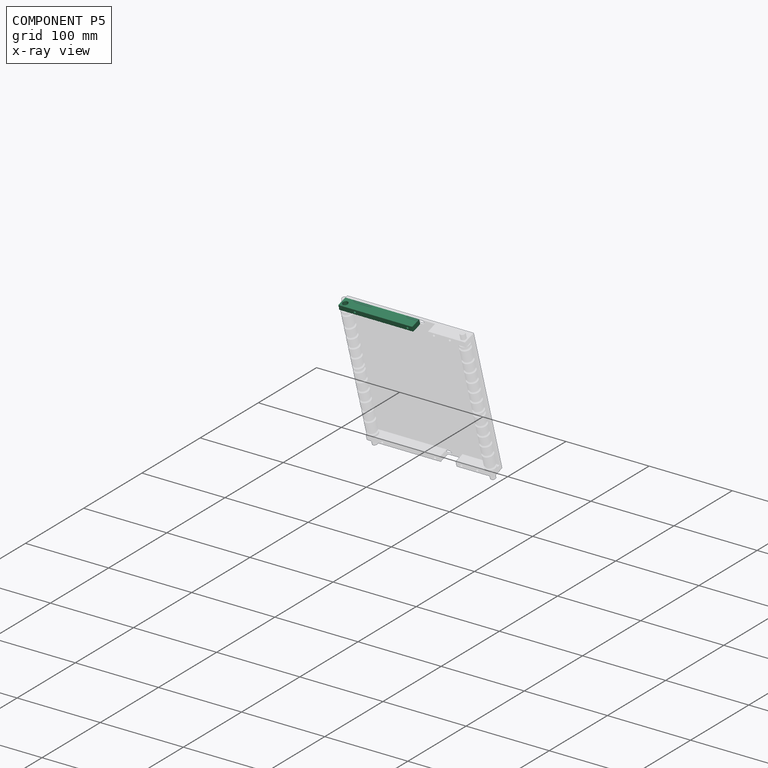
[diagram: component P5 — x-ray view]
COMPONENT P5 — same part as P4 (CADFS 00121784); its construction recipe is shown at P4.
Held by: PLANAR mate "Planar 3" to P0; PLANAR mate "Planar 2" to P0; PLANAR mate "Planar 1" to P0.
PROVENANCE & LICENSES
Assembly (occurrences, transforms, mates, per-part STEP geometry): AutoMate dataset, Zenodo record 7776208, CC0.
Construction recipes: CADFS (HuggingFace VladPyatov/CADFS, CC-BY-4.0, layered over the ABC dataset), FeatureScript reconstruction programs keyed by ABC model id.
Join: ABC meta listings map ABC model id -> Onshape documentId; within a shared document, parts are matched by geometric signature (bounding-box dims + volume at 0.1% relative tolerance, exact B-rep face/solid counts).
Verification: 5 of this assembly's 7 components carry a recipe attachment, and every attachment is mesh-verified: the CADFS STEP and the AutoMate member STEP were compared as meshes in their shared local frame (symmetric sampled-point-to-mesh distance); worst across the 5 attachments: below the mesh-comparison resolution (tessellation chordal tolerance ~0.346 mm) on a 230 mm part.
Renders: orthographic iso camera (az 35 / el 25); the floor grid conveys scale (grid pitch printed in each image; no ruler). In the exploded view each component is displaced by its stored offset vector: the offsets alone carry the explosion direction (mate normal/axis signs are not orientation cues and do not encode it), and separation distances are assigned per mate-chain, not proportionally to assembly-order depth.
